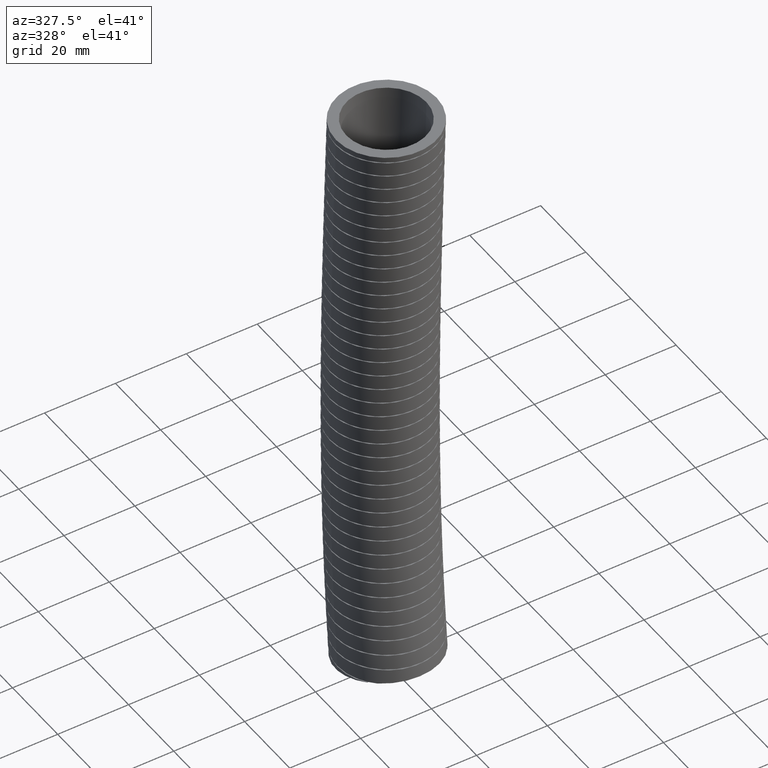
[diagram: clean part render]
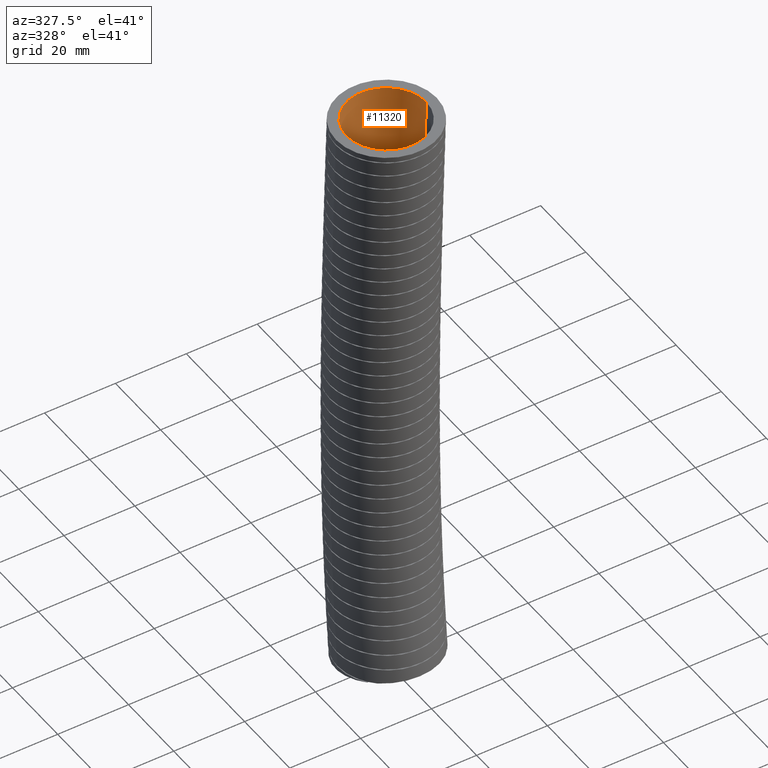
[diagram: same view with one face highlighted and labeled with its STEP entity id]
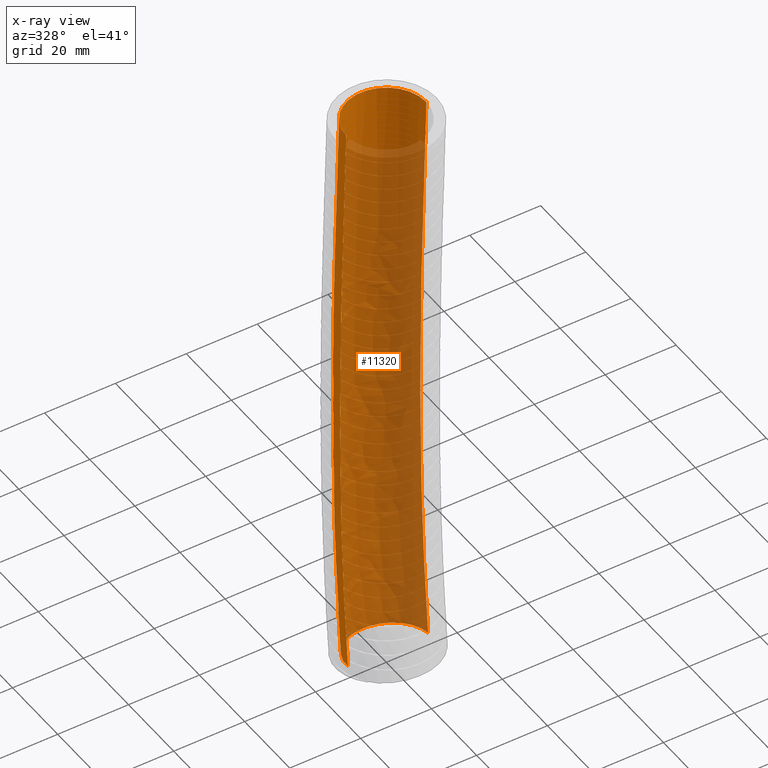
[diagram: x-ray of the same camera — body ghosted, the highlighted face saturated]
A machine part, auxiliary view. The second image highlights one B-rep face of the part: STEP entity #11320.
The next image is the same camera in x-ray: the body ghosted, the highlighted face saturated — about 82% of this face is hidden behind the body in this view.
In plain terms, the highlighted face is a freeform B-spline surface patch.
Its self-contained STEP definition (entity closure, byte-faithful):
#11320 = ADVANCED_FACE ( 'NONE', ( #13722 ), #13747, .F. ) ;
#11332 = EDGE_LOOP ( 'NONE', ( #11363, #11362, #11368, #11365 ) ) ;
#11333 = VERTEX_POINT ( 'NONE', #13916 ) ;
#11338 = VERTEX_POINT ( 'NONE', #13913 ) ;
#11340 = VERTEX_POINT ( 'NONE', #13912 ) ;
#11341 = EDGE_CURVE ( 'NONE', #11340, #11333, #13918, .T. ) ;
#11349 = EDGE_CURVE ( 'NONE', #11340, #11364, #13986, .T. ) ;
#11357 = EDGE_CURVE ( 'NONE', #11364, #11338, #14068, .T. ) ;
#11362 = ORIENTED_EDGE ( 'NONE', *, *, #11357, .T. ) ;
#11363 = ORIENTED_EDGE ( 'NONE', *, *, #11349, .T. ) ;
#11364 = VERTEX_POINT ( 'NONE', #14134 ) ;
#11365 = ORIENTED_EDGE ( 'NONE', *, *, #11341, .F. ) ;
#11366 = EDGE_CURVE ( 'NONE', #11333, #11338, #14125, .T. ) ;
#11368 = ORIENTED_EDGE ( 'NONE', *, *, #11366, .F. ) ;
#13722 = FACE_OUTER_BOUND ( 'NONE', #11332, .T. ) ;
#13747 =( BOUNDED_SURFACE ( )  B_SPLINE_SURFACE ( 3, 3, ( 
 ( #13793, #13792, #13791, #13790, #13789, #13788 ),
 ( #13787, #13786, #13785, #13784, #13783, #13782 ),
 ( #13781, #13780, #13779, #13778, #13777, #13776 ),
 ( #13775, #13774, #13772, #13771, #13770, #13769 ),
 ( #13768, #13767, #13766, #13765, #13764, #13763 ),
 ( #13762, #13761, #13815, #13814, #13813, #13812 ),
 ( #13811, #13810, #13809, #13808, #13807, #13806 ) ),
 .UNSPECIFIED., .F., .F., .F. ) 
 B_SPLINE_SURFACE_WITH_KNOTS ( ( 4, 3, 4 ),
 ( 4, 1, 1, 4 ),
 ( 0.0000000000000000000, 0.5000000000000000000, 1.000000000000000000 ),
 ( 0.0000000000000000000, 0.5600000000000000500, 0.9129383075960209000, 1.000000000000000000 ),
 .UNSPECIFIED. ) 
 GEOMETRIC_REPRESENTATION_ITEM ( )  RATIONAL_B_SPLINE_SURFACE ( (
 ( 1.000000000000000000, 1.000000000000000000, 1.000000000000000000, 1.000000000000000000, 1.000000000000000000, 1.000000000000000000),
 ( 0.3333333333333333100, 0.3333333333333333100, 0.3333333333333333100, 0.3333333333333333100, 0.3333333333333333100, 0.3333333333333333100),
 ( 0.3333333333333333100, 0.3333333333333333100, 0.3333333333333333100, 0.3333333333333333100, 0.3333333333333333100, 0.3333333333333333100),
 ( 1.000000000000000000, 1.000000000000000000, 1.000000000000000000, 1.000000000000000000, 1.000000000000000000, 1.000000000000000000),
 ( 0.3333333333333333100, 0.3333333333333333100, 0.3333333333333333100, 0.3333333333333333100, 0.3333333333333333100, 0.3333333333333333100),
 ( 0.3333333333333333100, 0.3333333333333333100, 0.3333333333333333100, 0.3333333333333333100, 0.3333333333333333100, 0.3333333333333333100),
 ( 1.000000000000000000, 1.000000000000000000, 1.000000000000000000, 1.000000000000000000, 1.000000000000000000, 1.000000000000000000) ) ) 
 REPRESENTATION_ITEM ( '' )  SURFACE ( )  );
#13761 = CARTESIAN_POINT ( 'NONE',  ( 0.4450000000000000600, 0.9453407123130359600, -1.237236440939165200 ) ) ;
#13762 = CARTESIAN_POINT ( 'NONE',  ( 0.4450000000000000600, 0.8900000000000001200, 0.0000000000000000000 ) ) ;
#13763 = CARTESIAN_POINT ( 'NONE',  ( -0.4449999999999997800, 0.8517724730180366000, -6.690736514061223200 ) ) ;
#13764 = CARTESIAN_POINT ( 'NONE',  ( -0.4449999999999999000, 0.8697654699252123100, -6.494864683487551600 ) ) ;
#13765 = CARTESIAN_POINT ( 'NONE',  ( -0.4449999999999999000, 0.9607000522949388200, -5.504950485030311900 ) ) ;
#13766 = CARTESIAN_POINT ( 'NONE',  ( -0.4449999999999999000, 1.035559741313430800, -3.254237409666174100 ) ) ;
#13767 = CARTESIAN_POINT ( 'NONE',  ( -0.4449999999999999000, 0.9453407123130359600, -1.237236440939165200 ) ) ;
#13768 = CARTESIAN_POINT ( 'NONE',  ( -0.4449999999999999000, 0.8900000000000001200, 0.0000000000000000000 ) ) ;
#13769 = CARTESIAN_POINT ( 'NONE',  ( -0.4449999999999999500, -0.02999999999999994300, -6.569999999999999400 ) ) ;
#13770 = CARTESIAN_POINT ( 'NONE',  ( -0.4449999999999999500, -0.01258014398173740300, -6.380031713690431900 ) ) ;
#13771 = CARTESIAN_POINT ( 'NONE',  ( -0.4449999999999999500, 0.07545784880698561100, -5.419953363865133200 ) ) ;
#13772 = CARTESIAN_POINT ( 'NONE',  ( -0.4450000000000000100, 0.1443774054838787000, -3.232434222864089000 ) ) ;
#13774 = CARTESIAN_POINT ( 'NONE',  ( -0.4450000000000000100, 0.05489119717643126800, -1.228947034284316500 ) ) ;
#13775 = CARTESIAN_POINT ( 'NONE',  ( -0.4450000000000000100, 5.449678256205722000E-017, 0.0000000000000000000 ) ) ;
#13776 = CARTESIAN_POINT ( 'NONE',  ( -0.4450000000000001200, -0.9117724730180365400, -6.449263485938775600 ) ) ;
#13777 = CARTESIAN_POINT ( 'NONE',  ( -0.4450000000000001200, -0.8949257578886873300, -6.265198743893312100 ) ) ;
#13778 = CARTESIAN_POINT ( 'NONE',  ( -0.4450000000000001200, -0.8097843546809679900, -5.334956242699953500 ) ) ;
#13779 = CARTESIAN_POINT ( 'NONE',  ( -0.4450000000000001200, -0.7468049303456733000, -3.210631036062004700 ) ) ;
#13780 = CARTESIAN_POINT ( 'NONE',  ( -0.4450000000000001200, -0.8355583179601732100, -1.220657627629468500 ) ) ;
#13781 = CARTESIAN_POINT ( 'NONE',  ( -0.4450000000000001200, -0.8900000000000001200, 0.0000000000000000000 ) ) ;
#13782 = CARTESIAN_POINT ( 'NONE',  ( 0.4449999999999999500, -0.9117724730180365400, -6.449263485938775600 ) ) ;
#13783 = CARTESIAN_POINT ( 'NONE',  ( 0.4449999999999999500, -0.8949257578886873300, -6.265198743893312100 ) ) ;
#13784 = CARTESIAN_POINT ( 'NONE',  ( 0.4449999999999999500, -0.8097843546809679900, -5.334956242699953500 ) ) ;
#13785 = CARTESIAN_POINT ( 'NONE',  ( 0.4450000000000000600, -0.7468049303456733000, -3.210631036062004700 ) ) ;
#13786 = CARTESIAN_POINT ( 'NONE',  ( 0.4450000000000000600, -0.8355583179601732100, -1.220657627629468500 ) ) ;
#13787 = CARTESIAN_POINT ( 'NONE',  ( 0.4450000000000000600, -0.8900000000000001200, 0.0000000000000000000 ) ) ;
#13788 = CARTESIAN_POINT ( 'NONE',  ( 0.4449999999999999500, -0.02999999999999999900, -6.569999999999999400 ) ) ;
#13789 = CARTESIAN_POINT ( 'NONE',  ( 0.4449999999999999500, -0.01258014398173745700, -6.380031713690431900 ) ) ;
#13790 = CARTESIAN_POINT ( 'NONE',  ( 0.4449999999999999500, 0.07545784880698555600, -5.419953363865133200 ) ) ;
#13791 = CARTESIAN_POINT ( 'NONE',  ( 0.4450000000000000100, 0.1443774054838786700, -3.232434222864089000 ) ) ;
#13792 = CARTESIAN_POINT ( 'NONE',  ( 0.4450000000000000100, 0.05489119717643119900, -1.228947034284316500 ) ) ;
#13793 = CARTESIAN_POINT ( 'NONE',  ( 0.4450000000000000100, 0.0000000000000000000, 0.0000000000000000000 ) ) ;
#13806 = CARTESIAN_POINT ( 'NONE',  ( 0.4449999999999999500, -0.02999999999999999900, -6.569999999999999400 ) ) ;
#13807 = CARTESIAN_POINT ( 'NONE',  ( 0.4449999999999999500, -0.01258014398173745700, -6.380031713690431900 ) ) ;
#13808 = CARTESIAN_POINT ( 'NONE',  ( 0.4449999999999999500, 0.07545784880698555600, -5.419953363865133200 ) ) ;
#13809 = CARTESIAN_POINT ( 'NONE',  ( 0.4450000000000000100, 0.1443774054838786700, -3.232434222864089000 ) ) ;
#13810 = CARTESIAN_POINT ( 'NONE',  ( 0.4450000000000000100, 0.05489119717643119900, -1.228947034284316500 ) ) ;
#13811 = CARTESIAN_POINT ( 'NONE',  ( 0.4450000000000000100, 0.0000000000000000000, 0.0000000000000000000 ) ) ;
#13812 = CARTESIAN_POINT ( 'NONE',  ( 0.4449999999999999500, 0.8517724730180366000, -6.690736514061223200 ) ) ;
#13813 = CARTESIAN_POINT ( 'NONE',  ( 0.4449999999999999500, 0.8697654699252123100, -6.494864683487551600 ) ) ;
#13814 = CARTESIAN_POINT ( 'NONE',  ( 0.4449999999999999500, 0.9607000522949388200, -5.504950485030311900 ) ) ;
#13815 = CARTESIAN_POINT ( 'NONE',  ( 0.4450000000000000600, 1.035559741313430800, -3.254237409666174100 ) ) ;
#13912 = CARTESIAN_POINT ( 'NONE',  ( 0.4450000000000000100, 0.0000000000000000000, 0.0000000000000000000 ) ) ;
#13913 = CARTESIAN_POINT ( 'NONE',  ( -0.4450000000000000100, -0.02999999999999994300, -6.569999999999999400 ) ) ;
#13916 = CARTESIAN_POINT ( 'NONE',  ( 0.4449999999999999500, -0.02999999999999998800, -6.569999999999999400 ) ) ;
#13918 = B_SPLINE_CURVE_WITH_KNOTS ( 'NONE', 3,
 ( #13980, #13979, #13978, #13977, #13976, #13975 ),
 .UNSPECIFIED., .F., .F.,
 ( 4, 1, 1, 4 ),
 ( 0.0000000000000000000, 0.5600000000000000500, 0.9129383075960209000, 1.000000000000000000 ),
 .UNSPECIFIED. ) ;
#13975 = CARTESIAN_POINT ( 'NONE',  ( 0.4449999999999999500, -0.02999999999999998800, -6.569999999999999400 ) ) ;
#13976 = CARTESIAN_POINT ( 'NONE',  ( 0.4449999999999999500, -0.01258014398173745700, -6.380031713690431900 ) ) ;
#13977 = CARTESIAN_POINT ( 'NONE',  ( 0.4449999999999999500, 0.07545784880698555600, -5.419953363865133200 ) ) ;
#13978 = CARTESIAN_POINT ( 'NONE',  ( 0.4450000000000000100, 0.1443774054838786700, -3.232434222864089000 ) ) ;
#13979 = CARTESIAN_POINT ( 'NONE',  ( 0.4450000000000000100, 0.05489119717643119900, -1.228947034284316500 ) ) ;
#13980 = CARTESIAN_POINT ( 'NONE',  ( 0.4450000000000000100, 0.0000000000000000000, 0.0000000000000000000 ) ) ;
#13981 = DIRECTION ( 'NONE',  ( 1.000000000000000000, 0.0000000000000000000, 0.0000000000000000000 ) ) ;
#13982 = DIRECTION ( 'NONE',  ( 0.0000000000000000000, 0.0000000000000000000, 1.000000000000000000 ) ) ;
#13983 = CARTESIAN_POINT ( 'NONE',  ( 0.0000000000000000000, 0.0000000000000000000, 0.0000000000000000000 ) ) ;
#13985 = AXIS2_PLACEMENT_3D ( 'NONE', #13983, #13982, #13981 ) ;
#13986 = CIRCLE ( 'NONE', #13985, 0.4450000000000000100 ) ;
#14068 = B_SPLINE_CURVE_WITH_KNOTS ( 'NONE', 3,
 ( #14132, #14131, #14130, #14129, #14128, #14127 ),
 .UNSPECIFIED., .F., .F.,
 ( 4, 1, 1, 4 ),
 ( 0.0000000000000000000, 0.5600000000000000500, 0.9129383075960209000, 1.000000000000000000 ),
 .UNSPECIFIED. ) ;
#14122 = DIRECTION ( 'NONE',  ( 1.000000000000000000, 0.0000000000000000000, 0.0000000000000000000 ) ) ;
#14123 = DIRECTION ( 'NONE',  ( 0.0000000000000000000, 0.1356590045631733400, 0.9907555876607150300 ) ) ;
#14124 = AXIS2_PLACEMENT_3D ( 'NONE', #14133, #14123, #14122 ) ;
#14125 = CIRCLE ( 'NONE', #14124, 0.4449999999999999500 ) ;
#14127 = CARTESIAN_POINT ( 'NONE',  ( -0.4450000000000000100, -0.02999999999999994300, -6.569999999999999400 ) ) ;
#14128 = CARTESIAN_POINT ( 'NONE',  ( -0.4449999999999999500, -0.01258014398173740300, -6.380031713690431900 ) ) ;
#14129 = CARTESIAN_POINT ( 'NONE',  ( -0.4449999999999999500, 0.07545784880698561100, -5.419953363865133200 ) ) ;
#14130 = CARTESIAN_POINT ( 'NONE',  ( -0.4450000000000000100, 0.1443774054838787000, -3.232434222864089000 ) ) ;
#14131 = CARTESIAN_POINT ( 'NONE',  ( -0.4450000000000000100, 0.05489119717643126800, -1.228947034284316500 ) ) ;
#14132 = CARTESIAN_POINT ( 'NONE',  ( -0.4450000000000000100, 5.449678256205722000E-017, 0.0000000000000000000 ) ) ;
#14133 = CARTESIAN_POINT ( 'NONE',  ( 0.0000000000000000000, -0.02999999999999998800, -6.569999999999999400 ) ) ;
#14134 = CARTESIAN_POINT ( 'NONE',  ( -0.4450000000000000100, 5.449678256205722000E-017, 0.0000000000000000000 ) ) ;